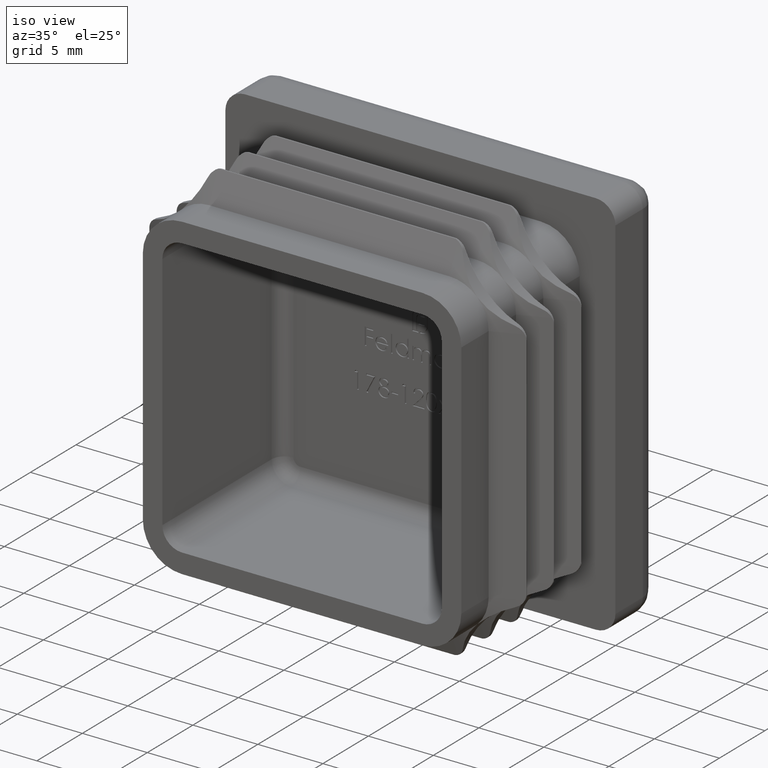
[diagram: clean part render]
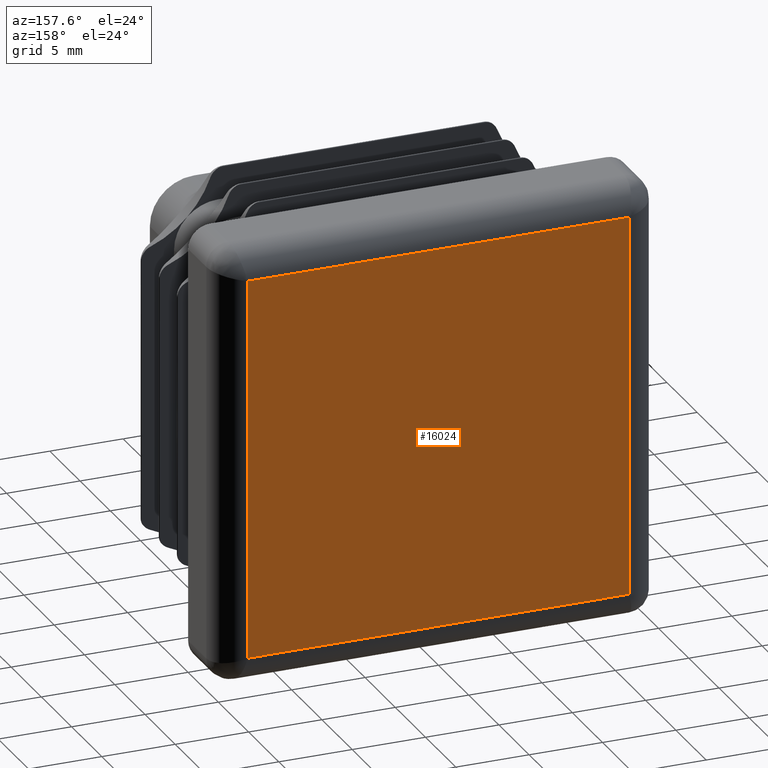
[diagram: tour spotlight — one face highlighted and labeled with its STEP entity id]
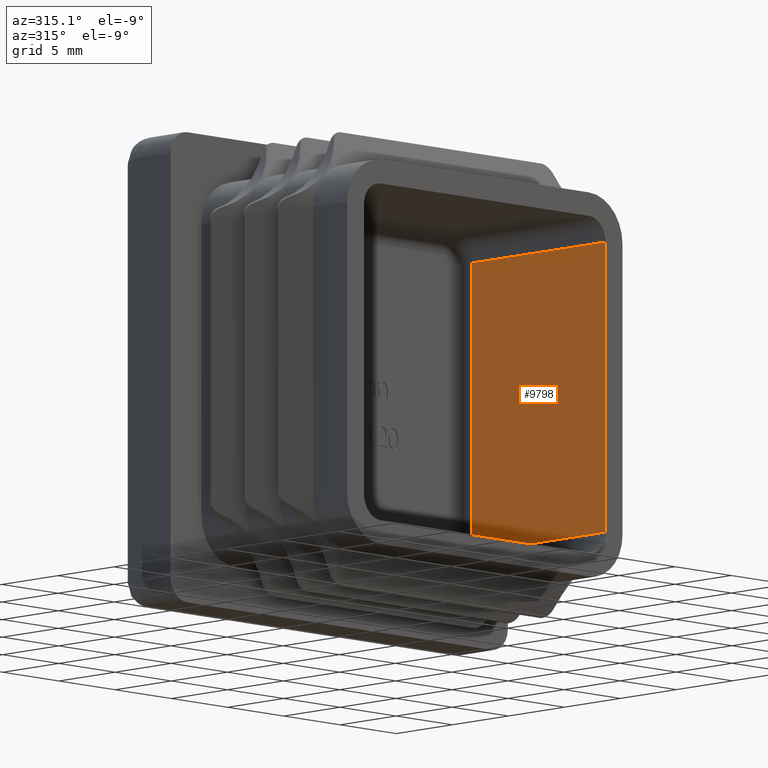
[diagram: tour spotlight — one face highlighted and labeled with its STEP entity id]
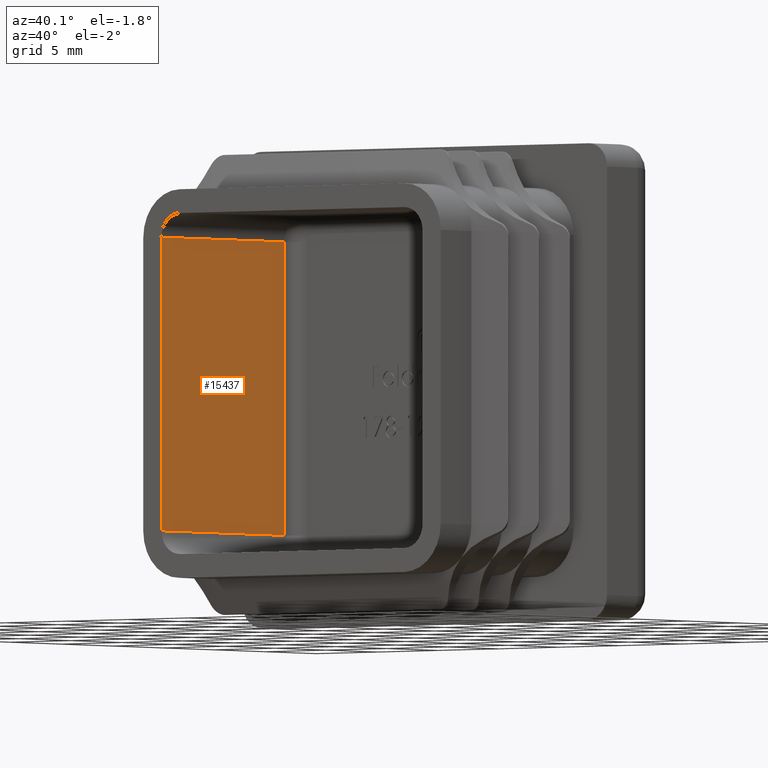
[diagram: tour spotlight — one face highlighted and labeled with its STEP entity id]
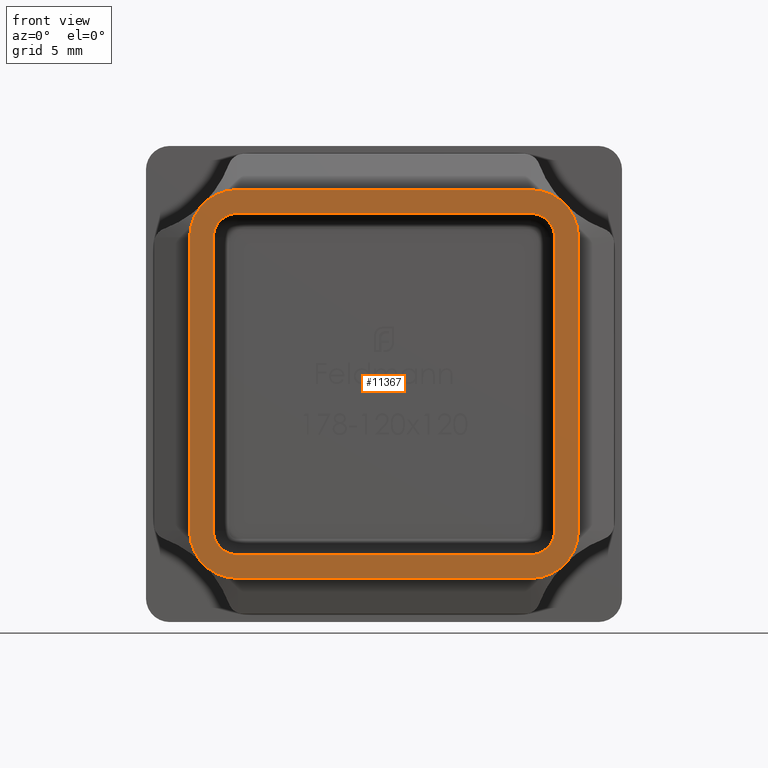
[diagram: tour spotlight — one face highlighted and labeled with its STEP entity id]
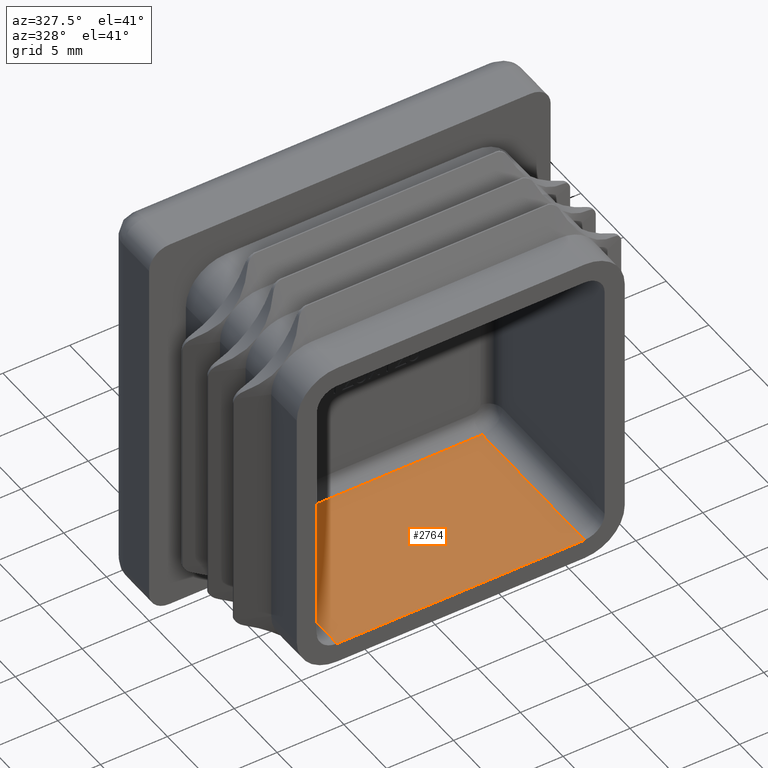
[diagram: tour spotlight — one face highlighted and labeled with its STEP entity id]
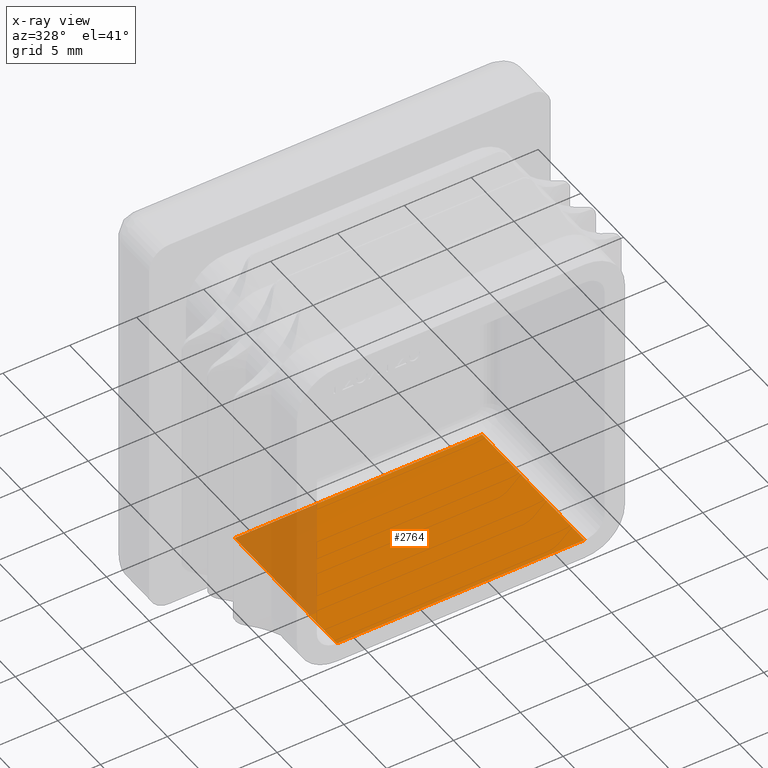
[diagram: x-ray of the same camera — body ghosted, this tour face saturated]
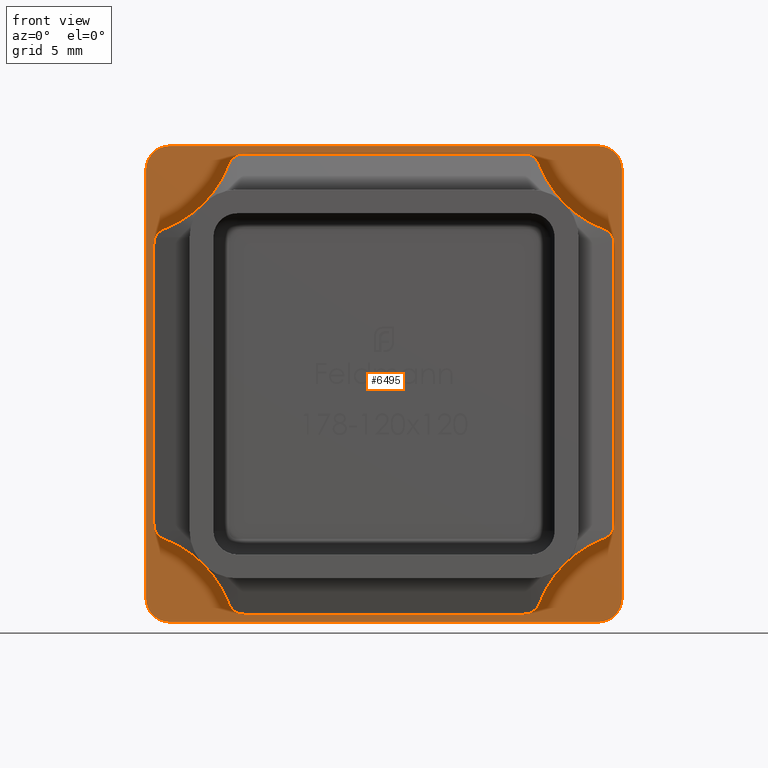
[diagram: tour spotlight — one face highlighted and labeled with its STEP entity id]
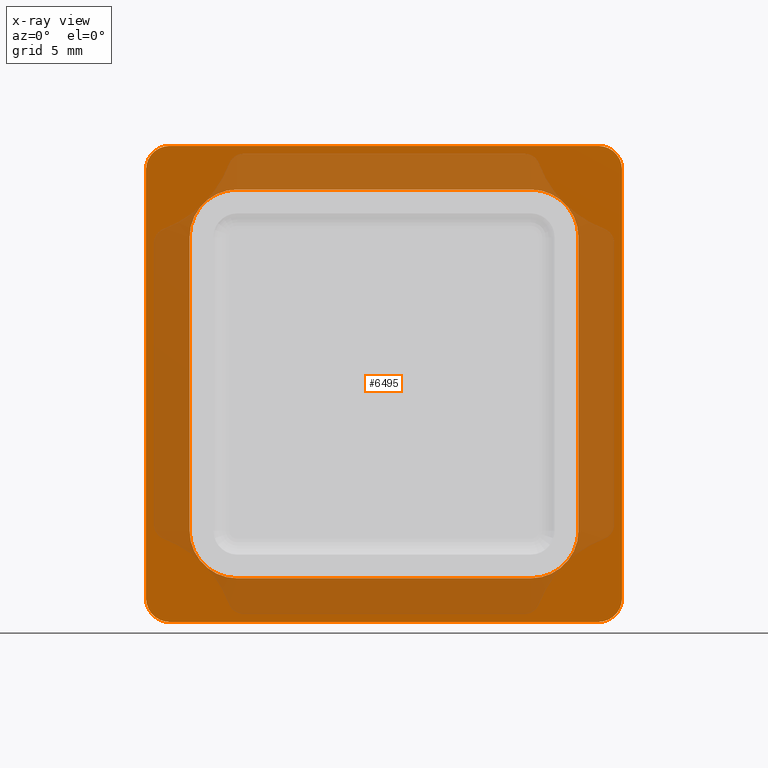
[diagram: x-ray of the same camera — body ghosted, this tour face saturated]
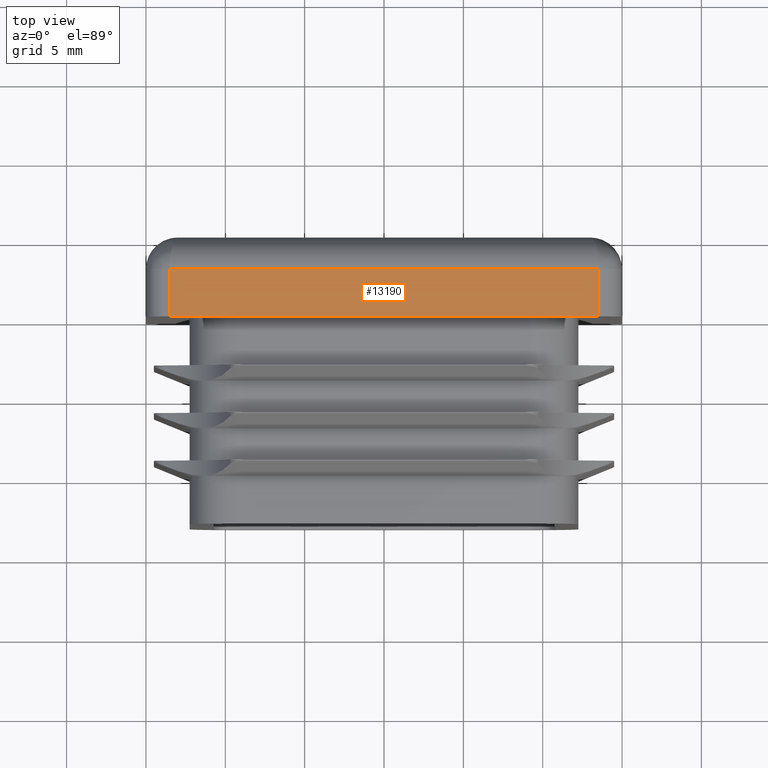
[diagram: tour spotlight — one face highlighted and labeled with its STEP entity id]
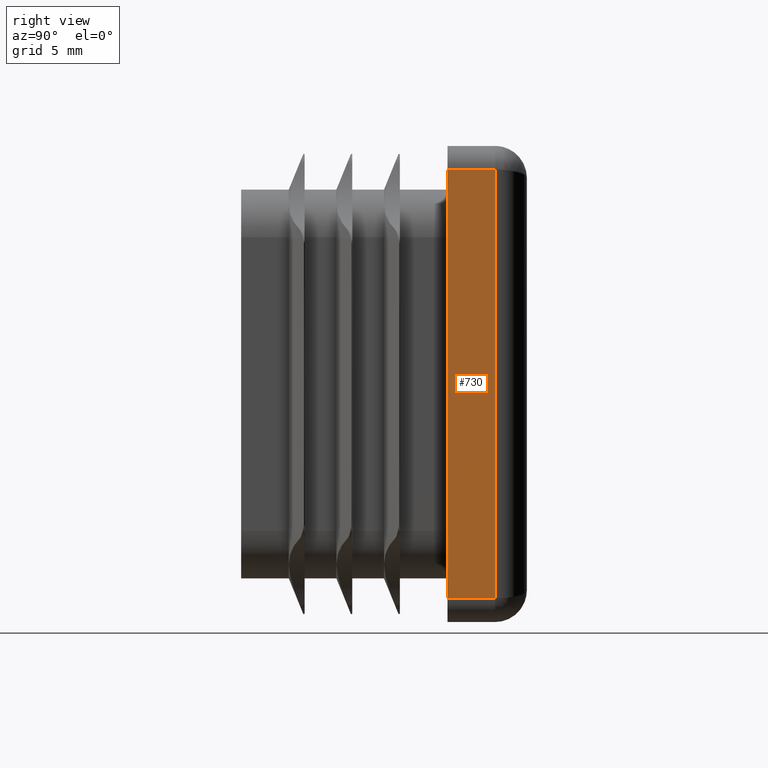
[diagram: tour spotlight — one face highlighted and labeled with its STEP entity id]
A machine part: a face-by-face anatomy tour. The part has 465 B-rep faces; the first image is the clean iso view, then the 8 largest visible faces are spotlighted one at a time (largest first), each with its STEP entity span.

Face 1 — auxiliary view, entity #16024. In plain terms, the highlighted planar face has unit normal (0, 1, 0).
Definition (entity closure, byte-faithful):
#431 = FACE_OUTER_BOUND ( 'NONE', #16841, .T. ) ;
#797 = CARTESIAN_POINT ( 'NONE',  ( -12.99999999999999289, 5.000000000000000000, 13.50000000000001066 ) ) ;
#886 = EDGE_CURVE ( 'NONE', #17351, #2311, #5390, .T. ) ;
#1414 = VECTOR ( 'NONE', #18505, 1000.000000000000000 ) ;
#2311 = VERTEX_POINT ( 'NONE', #8908 ) ;
#2592 = CARTESIAN_POINT ( 'NONE',  ( 13.50000000000000533, 5.000000000000000000, 13.00000000000001243 ) ) ;
#2714 = CARTESIAN_POINT ( 'NONE',  ( 13.00000000000000711, 5.000000000000000000, 13.00000000000001243 ) ) ;
#3085 = ORIENTED_EDGE ( 'NONE', *, *, #15872, .T. ) ;
#3848 = EDGE_CURVE ( 'NONE', #2311, #13670, #19646, .T. ) ;
#4873 = VECTOR ( 'NONE', #7278, 1000.000000000000000 ) ;
#4909 = CARTESIAN_POINT ( 'NONE',  ( 0.000000000000000000, 5.000000000000000000, 0.000000000000000000 ) ) ;
#5108 = DIRECTION ( 'NONE',  ( 0.000000000000000000, 1.000000000000000000, 0.000000000000000000 ) ) ;
#5390 = LINE ( 'NONE', #797, #4873 ) ;
#5810 = DIRECTION ( 'NONE',  ( 1.000000000000000000, -0.000000000000000000, 0.000000000000000000 ) ) ;
#5912 = LINE ( 'NONE', #8893, #1414 ) ;
#6102 = CARTESIAN_POINT ( 'NONE',  ( -13.50000000000000533, 5.000000000000000000, -12.99999999999997868 ) ) ;
#6300 = AXIS2_PLACEMENT_3D ( 'NONE', #4909, #5108, #9788 ) ;
#7278 = DIRECTION ( 'NONE',  ( 4.625929269271486900E-16, -0.000000000000000000, 1.000000000000000000 ) ) ;
#7592 = CARTESIAN_POINT ( 'NONE',  ( 13.00000000000000000, 5.000000000000000000, -12.99999999999999112 ) ) ;
#8893 = CARTESIAN_POINT ( 'NONE',  ( 13.00000000000000000, 5.000000000000000000, -13.49999999999999289 ) ) ;
#8908 = CARTESIAN_POINT ( 'NONE',  ( -12.99999999999999289, 5.000000000000000000, 13.00000000000001243 ) ) ;
#9259 = ORIENTED_EDGE ( 'NONE', *, *, #886, .T. ) ;
#9534 = CARTESIAN_POINT ( 'NONE',  ( -13.00000000000000533, 5.000000000000000000, -12.99999999999997868 ) ) ;
#9788 = DIRECTION ( 'NONE',  ( 0.000000000000000000, -0.000000000000000000, 1.000000000000000000 ) ) ;
#11097 = LINE ( 'NONE', #6102, #11838 ) ;
#11838 = VECTOR ( 'NONE', #18526, 1000.000000000000000 ) ;
#13670 = VERTEX_POINT ( 'NONE', #2714 ) ;
#14704 = ORIENTED_EDGE ( 'NONE', *, *, #3848, .T. ) ;
#14994 = VERTEX_POINT ( 'NONE', #7592 ) ;
#15689 = PLANE ( 'NONE',  #6300 ) ;
#15872 = EDGE_CURVE ( 'NONE', #14994, #17351, #11097, .T. ) ;
#16024 = ADVANCED_FACE ( 'NONE', ( #431 ), #15689, .T. ) ;
#16275 = EDGE_CURVE ( 'NONE', #13670, #14994, #5912, .T. ) ;
#16841 = EDGE_LOOP ( 'NONE', ( #9259, #14704, #18685, #3085 ) ) ;
#17351 = VERTEX_POINT ( 'NONE', #9534 ) ;
#18505 = DIRECTION ( 'NONE',  ( -2.312964634635742464E-16, 0.000000000000000000, -1.000000000000000000 ) ) ;
#18526 = DIRECTION ( 'NONE',  ( -1.000000000000000000, 0.000000000000000000, 4.625929269271484928E-16 ) ) ;
#18685 = ORIENTED_EDGE ( 'NONE', *, *, #16275, .T. ) ;
#19385 = VECTOR ( 'NONE', #5810, 1000.000000000000000 ) ;
#19646 = LINE ( 'NONE', #2592, #19385 ) ;

Face 2 — auxiliary view, entity #9798. In plain terms, the highlighted planar face has unit normal (-1, 0, -0).
Definition (entity closure, byte-faithful):
#301 = DIRECTION ( 'NONE',  ( -9.376883653928694512E-16, 0.000000000000000000, 1.000000000000000000 ) ) ;
#674 = VECTOR ( 'NONE', #11819, 1000.000000000000000 ) ;
#1034 = EDGE_LOOP ( 'NONE', ( #9579, #10562, #4759, #16397 ) ) ;
#1245 = VECTOR ( 'NONE', #3268, 1000.000000000000000 ) ;
#2332 = VERTEX_POINT ( 'NONE', #12089 ) ;
#2544 = LINE ( 'NONE', #6892, #12479 ) ;
#3268 = DIRECTION ( 'NONE',  ( -9.376883653928692540E-16, -0.000000000000000000, 1.000000000000000000 ) ) ;
#3987 = VERTEX_POINT ( 'NONE', #16493 ) ;
#3997 = EDGE_CURVE ( 'NONE', #3987, #20276, #2544, .T. ) ;
#4177 = AXIS2_PLACEMENT_3D ( 'NONE', #19276, #11130, #301 ) ;
#4543 = VERTEX_POINT ( 'NONE', #15196 ) ;
#4759 = ORIENTED_EDGE ( 'NONE', *, *, #15767, .F. ) ;
#4995 = PLANE ( 'NONE',  #4177 ) ;
#6892 = CARTESIAN_POINT ( 'NONE',  ( 10.74999999999997158, -13.00000000000000000, 9.249999999999994671 ) ) ;
#8575 = DIRECTION ( 'NONE',  ( 9.376883653928694512E-16, -0.000000000000000000, -1.000000000000000000 ) ) ;
#9548 = FACE_OUTER_BOUND ( 'NONE', #1034, .T. ) ;
#9579 = ORIENTED_EDGE ( 'NONE', *, *, #3997, .T. ) ;
#9798 = ADVANCED_FACE ( 'NONE', ( #9548 ), #4995, .T. ) ;
#10562 = ORIENTED_EDGE ( 'NONE', *, *, #17507, .T. ) ;
#11130 = DIRECTION ( 'NONE',  ( -1.000000000000000000, 0.000000000000000000, -9.376883653928694512E-16 ) ) ;
#11819 = DIRECTION ( 'NONE',  ( -0.000000000000000000, 1.000000000000000000, -0.000000000000000000 ) ) ;
#12089 = CARTESIAN_POINT ( 'NONE',  ( 10.74999999999998579, -0.9999999999999956701, -9.249999999999994671 ) ) ;
#12331 = EDGE_CURVE ( 'NONE', #4543, #3987, #15879, .T. ) ;
#12479 = VECTOR ( 'NONE', #18079, 1000.000000000000000 ) ;
#12784 = LINE ( 'NONE', #13325, #18003 ) ;
#13325 = CARTESIAN_POINT ( 'NONE',  ( 10.74999999999996803, -0.9999999999999991118, 9.249999999999994671 ) ) ;
#15196 = CARTESIAN_POINT ( 'NONE',  ( 10.74999999999998579, -13.00000000000000000, -9.249999999999994671 ) ) ;
#15767 = EDGE_CURVE ( 'NONE', #4543, #2332, #19749, .T. ) ;
#15879 = LINE ( 'NONE', #18914, #1245 ) ;
#16397 = ORIENTED_EDGE ( 'NONE', *, *, #12331, .T. ) ;
#16493 = CARTESIAN_POINT ( 'NONE',  ( 10.74999999999997158, -13.00000000000000000, 9.249999999999994671 ) ) ;
#17252 = CARTESIAN_POINT ( 'NONE',  ( 10.74999999999998579, -13.00000000000000000, -9.249999999999994671 ) ) ;
#17507 = EDGE_CURVE ( 'NONE', #20276, #2332, #12784, .T. ) ;
#18003 = VECTOR ( 'NONE', #8575, 1000.000000000000000 ) ;
#18079 = DIRECTION ( 'NONE',  ( -0.000000000000000000, 1.000000000000000000, -0.000000000000000000 ) ) ;
#18694 = CARTESIAN_POINT ( 'NONE',  ( 10.74999999999997158, -1.000000000000002665, 9.249999999999994671 ) ) ;
#18914 = CARTESIAN_POINT ( 'NONE',  ( 10.74999999999996803, -13.00000000000000000, 9.249999999999994671 ) ) ;
#19276 = CARTESIAN_POINT ( 'NONE',  ( 10.74999999999996803, -13.00000000000000000, 9.249999999999994671 ) ) ;
#19749 = LINE ( 'NONE', #17252, #674 ) ;
#20276 = VERTEX_POINT ( 'NONE', #18694 ) ;

Face 3 — auxiliary view, entity #15437. In plain terms, the highlighted planar face has unit normal (1, 0, 0).
Definition (entity closure, byte-faithful):
#331 = VERTEX_POINT ( 'NONE', #12809 ) ;
#861 = LINE ( 'NONE', #16553, #1611 ) ;
#1160 = EDGE_CURVE ( 'NONE', #331, #12531, #2635, .T. ) ;
#1611 = VECTOR ( 'NONE', #3674, 1000.000000000000000 ) ;
#2121 = VECTOR ( 'NONE', #19126, 1000.000000000000000 ) ;
#2265 = CARTESIAN_POINT ( 'NONE',  ( -10.75000000000000178, -13.00000000000000000, -9.249999999999994671 ) ) ;
#2635 = LINE ( 'NONE', #12774, #2121 ) ;
#3674 = DIRECTION ( 'NONE',  ( -0.000000000000000000, 1.000000000000000000, -0.000000000000000000 ) ) ;
#3814 = CARTESIAN_POINT ( 'NONE',  ( -10.75000000000000888, -0.9999999999999991118, 9.250000000000001776 ) ) ;
#3931 = LINE ( 'NONE', #3814, #11846 ) ;
#4021 = DIRECTION ( 'NONE',  ( 1.000000000000000000, 0.000000000000000000, 3.750753461571476424E-16 ) ) ;
#4462 = DIRECTION ( 'NONE',  ( -0.000000000000000000, 1.000000000000000000, -0.000000000000000000 ) ) ;
#5254 = ORIENTED_EDGE ( 'NONE', *, *, #6896, .T. ) ;
#5731 = EDGE_CURVE ( 'NONE', #331, #7059, #861, .T. ) ;
#5759 = EDGE_LOOP ( 'NONE', ( #8455, #5254, #11531, #10499 ) ) ;
#6896 = EDGE_CURVE ( 'NONE', #19065, #7059, #3931, .T. ) ;
#7017 = DIRECTION ( 'NONE',  ( -3.750753461571476424E-16, -0.000000000000000000, 1.000000000000000000 ) ) ;
#7059 = VERTEX_POINT ( 'NONE', #19080 ) ;
#7143 = LINE ( 'NONE', #20407, #9833 ) ;
#7219 = DIRECTION ( 'NONE',  ( 3.750753461571476424E-16, 0.000000000000000000, -1.000000000000000000 ) ) ;
#8455 = ORIENTED_EDGE ( 'NONE', *, *, #16894, .T. ) ;
#8729 = PLANE ( 'NONE',  #17187 ) ;
#9833 = VECTOR ( 'NONE', #4462, 1000.000000000000000 ) ;
#10499 = ORIENTED_EDGE ( 'NONE', *, *, #1160, .T. ) ;
#11531 = ORIENTED_EDGE ( 'NONE', *, *, #5731, .F. ) ;
#11846 = VECTOR ( 'NONE', #7017, 1000.000000000000000 ) ;
#12531 = VERTEX_POINT ( 'NONE', #2265 ) ;
#12774 = CARTESIAN_POINT ( 'NONE',  ( -10.75000000000000888, -13.00000000000000000, 9.250000000000001776 ) ) ;
#12809 = CARTESIAN_POINT ( 'NONE',  ( -10.75000000000000888, -13.00000000000000000, 9.250000000000001776 ) ) ;
#13420 = CARTESIAN_POINT ( 'NONE',  ( -10.75000000000000888, -13.00000000000000000, 9.250000000000001776 ) ) ;
#15437 = ADVANCED_FACE ( 'NONE', ( #17081 ), #8729, .T. ) ;
#16261 = CARTESIAN_POINT ( 'NONE',  ( -10.75000000000000178, -1.000000000000002665, -9.249999999999994671 ) ) ;
#16553 = CARTESIAN_POINT ( 'NONE',  ( -10.75000000000000888, -13.00000000000000000, 9.250000000000001776 ) ) ;
#16894 = EDGE_CURVE ( 'NONE', #12531, #19065, #7143, .T. ) ;
#17081 = FACE_OUTER_BOUND ( 'NONE', #5759, .T. ) ;
#17187 = AXIS2_PLACEMENT_3D ( 'NONE', #13420, #4021, #7219 ) ;
#19065 = VERTEX_POINT ( 'NONE', #16261 ) ;
#19080 = CARTESIAN_POINT ( 'NONE',  ( -10.75000000000000888, -0.9999999999999956701, 9.250000000000001776 ) ) ;
#19126 = DIRECTION ( 'NONE',  ( 3.750753461571475931E-16, -0.000000000000000000, -1.000000000000000000 ) ) ;
#20407 = CARTESIAN_POINT ( 'NONE',  ( -10.75000000000000178, -13.00000000000000000, -9.249999999999994671 ) ) ;

Face 4 — front view, entity #11367. In plain terms, the highlighted planar face has unit normal (0, -1, 0).
Definition (entity closure, byte-faithful):
#3 = CARTESIAN_POINT ( 'NONE',  ( -9.250000000000001776, -13.00000000000000000, -10.74999999999999645 ) ) ;
#111 = VERTEX_POINT ( 'NONE', #15456 ) ;
#145 = CARTESIAN_POINT ( 'NONE',  ( 9.249999999999973355, -13.00000000000000000, 9.249999999999994671 ) ) ;
#282 = VERTEX_POINT ( 'NONE', #9575 ) ;
#331 = VERTEX_POINT ( 'NONE', #12809 ) ;
#355 = ORIENTED_EDGE ( 'NONE', *, *, #17347, .T. ) ;
#418 = AXIS2_PLACEMENT_3D ( 'NONE', #15208, #19993, #10509 ) ;
#570 = CIRCLE ( 'NONE', #14147, 3.000000000000006217 ) ;
#596 = EDGE_CURVE ( 'NONE', #12531, #282, #5127, .T. ) ;
#609 = CIRCLE ( 'NONE', #418, 3.000000000000006217 ) ;
#636 = VECTOR ( 'NONE', #11246, 1000.000000000000000 ) ;
#813 = EDGE_CURVE ( 'NONE', #111, #4543, #17503, .T. ) ;
#885 = EDGE_CURVE ( 'NONE', #8934, #14242, #609, .T. ) ;
#1057 = ORIENTED_EDGE ( 'NONE', *, *, #12114, .F. ) ;
#1094 = AXIS2_PLACEMENT_3D ( 'NONE', #8720, #18266, #10318 ) ;
#1156 = CIRCLE ( 'NONE', #10774, 1.499999999999997780 ) ;
#1160 = EDGE_CURVE ( 'NONE', #331, #12531, #2635, .T. ) ;
#1245 = VECTOR ( 'NONE', #3268, 1000.000000000000000 ) ;
#1538 = DIRECTION ( 'NONE',  ( 0.000000000000000000, 0.000000000000000000, 1.000000000000000000 ) ) ;
#1582 = VERTEX_POINT ( 'NONE', #9472 ) ;
#1677 = VECTOR ( 'NONE', #2180, 1000.000000000000000 ) ;
#1726 = VECTOR ( 'NONE', #16596, 1000.000000000000000 ) ;
#1938 = VECTOR ( 'NONE', #11113, 1000.000000000000000 ) ;
#2121 = VECTOR ( 'NONE', #19126, 1000.000000000000000 ) ;
#2180 = DIRECTION ( 'NONE',  ( -0.000000000000000000, -0.000000000000000000, 1.000000000000000000 ) ) ;
#2220 = DIRECTION ( 'NONE',  ( 0.000000000000000000, -1.000000000000000000, 0.000000000000000000 ) ) ;
#2239 = FACE_OUTER_BOUND ( 'NONE', #16455, .T. ) ;
#2244 = ORIENTED_EDGE ( 'NONE', *, *, #596, .F. ) ;
#2265 = CARTESIAN_POINT ( 'NONE',  ( -10.75000000000000178, -13.00000000000000000, -9.249999999999994671 ) ) ;
#2381 = VERTEX_POINT ( 'NONE', #8776 ) ;
#2547 = ORIENTED_EDGE ( 'NONE', *, *, #813, .F. ) ;
#2635 = LINE ( 'NONE', #12774, #2121 ) ;
#2647 = VERTEX_POINT ( 'NONE', #14347 ) ;
#2652 = CARTESIAN_POINT ( 'NONE',  ( -9.250000000000008882, -13.00000000000000000, 10.74999999999999645 ) ) ;
#2789 = ORIENTED_EDGE ( 'NONE', *, *, #13445, .F. ) ;
#2862 = CARTESIAN_POINT ( 'NONE',  ( -9.250000000000012434, -13.00000000000000000, 9.249999999999998224 ) ) ;
#2981 = EDGE_CURVE ( 'NONE', #12337, #18350, #570, .T. ) ;
#3066 = VERTEX_POINT ( 'NONE', #8361 ) ;
#3268 = DIRECTION ( 'NONE',  ( -9.376883653928692540E-16, -0.000000000000000000, 1.000000000000000000 ) ) ;
#3390 = VECTOR ( 'NONE', #4769, 1000.000000000000000 ) ;
#3614 = EDGE_LOOP ( 'NONE', ( #3617, #12411, #1057, #17965, #4492, #2547, #2789, #2244 ) ) ;
#3617 = ORIENTED_EDGE ( 'NONE', *, *, #1160, .F. ) ;
#3663 = EDGE_CURVE ( 'NONE', #1582, #19659, #10258, .T. ) ;
#3895 = LINE ( 'NONE', #12634, #3390 ) ;
#3987 = VERTEX_POINT ( 'NONE', #16493 ) ;
#4492 = ORIENTED_EDGE ( 'NONE', *, *, #12331, .F. ) ;
#4543 = VERTEX_POINT ( 'NONE', #15196 ) ;
#4590 = EDGE_CURVE ( 'NONE', #3066, #331, #8510, .T. ) ;
#4699 = AXIS2_PLACEMENT_3D ( 'NONE', #19904, #10432, #7755 ) ;
#4769 = DIRECTION ( 'NONE',  ( -1.000000000000000000, -0.000000000000000000, -0.000000000000000000 ) ) ;
#4821 = DIRECTION ( 'NONE',  ( 1.000000000000000000, 0.000000000000000000, 0.000000000000000000 ) ) ;
#5088 = DIRECTION ( 'NONE',  ( 0.000000000000000000, 0.000000000000000000, 1.000000000000000000 ) ) ;
#5127 = CIRCLE ( 'NONE', #12518, 1.500000000000001332 ) ;
#5367 = ORIENTED_EDGE ( 'NONE', *, *, #15374, .T. ) ;
#5893 = LINE ( 'NONE', #15832, #636 ) ;
#5960 = LINE ( 'NONE', #3, #1938 ) ;
#6196 = DIRECTION ( 'NONE',  ( 0.000000000000000000, 0.000000000000000000, 1.000000000000000000 ) ) ;
#6615 = DIRECTION ( 'NONE',  ( 0.000000000000000000, -1.000000000000000000, 0.000000000000000000 ) ) ;
#7088 = CARTESIAN_POINT ( 'NONE',  ( 9.249999999999969802, -13.00000000000000000, 12.24999999999999645 ) ) ;
#7396 = CARTESIAN_POINT ( 'NONE',  ( -12.25000000000001066, -13.00000000000000000, 9.250000000000001776 ) ) ;
#7482 = LINE ( 'NONE', #18842, #11394 ) ;
#7673 = DIRECTION ( 'NONE',  ( 0.000000000000000000, -1.000000000000000000, 0.000000000000000000 ) ) ;
#7690 = EDGE_CURVE ( 'NONE', #18350, #1582, #3895, .T. ) ;
#7755 = DIRECTION ( 'NONE',  ( 0.000000000000000000, 0.000000000000000000, -1.000000000000000000 ) ) ;
#7861 = CARTESIAN_POINT ( 'NONE',  ( -9.250000000000001776, -13.00000000000000000, -12.24999999999999645 ) ) ;
#7970 = EDGE_CURVE ( 'NONE', #3987, #20458, #1156, .T. ) ;
#8361 = CARTESIAN_POINT ( 'NONE',  ( -9.250000000000008882, -13.00000000000000000, 10.74999999999999645 ) ) ;
#8510 = CIRCLE ( 'NONE', #18549, 1.499999999999997780 ) ;
#8523 = CARTESIAN_POINT ( 'NONE',  ( 12.24999999999998224, -13.00000000000000000, 9.249999999999991118 ) ) ;
#8720 = CARTESIAN_POINT ( 'NONE',  ( 9.249999999999987566, -13.00000000000000000, -9.249999999999994671 ) ) ;
#8776 = CARTESIAN_POINT ( 'NONE',  ( 9.249999999999987566, -13.00000000000000000, -12.24999999999999645 ) ) ;
#8829 = EDGE_CURVE ( 'NONE', #2381, #2647, #13518, .T. ) ;
#8934 = VERTEX_POINT ( 'NONE', #9341 ) ;
#9218 = FACE_BOUND ( 'NONE', #3614, .T. ) ;
#9260 = CARTESIAN_POINT ( 'NONE',  ( -9.250000000000012434, -13.00000000000000000, 9.249999999999998224 ) ) ;
#9341 = CARTESIAN_POINT ( 'NONE',  ( -12.25000000000000711, -13.00000000000000000, -9.249999999999994671 ) ) ;
#9472 = CARTESIAN_POINT ( 'NONE',  ( -9.250000000000012434, -13.00000000000000000, 12.24999999999999645 ) ) ;
#9575 = CARTESIAN_POINT ( 'NONE',  ( -9.250000000000001776, -13.00000000000000000, -10.74999999999999645 ) ) ;
#10153 = CARTESIAN_POINT ( 'NONE',  ( 9.249999999999987566, -13.00000000000000000, -9.249999999999994671 ) ) ;
#10258 = CIRCLE ( 'NONE', #11629, 2.999999999999999112 ) ;
#10318 = DIRECTION ( 'NONE',  ( 0.000000000000000000, 0.000000000000000000, -1.000000000000000000 ) ) ;
#10408 = AXIS2_PLACEMENT_3D ( 'NONE', #10153, #2220, #13326 ) ;
#10432 = DIRECTION ( 'NONE',  ( 0.000000000000000000, -1.000000000000000000, 0.000000000000000000 ) ) ;
#10509 = DIRECTION ( 'NONE',  ( 0.000000000000000000, 0.000000000000000000, 1.000000000000000000 ) ) ;
#10774 = AXIS2_PLACEMENT_3D ( 'NONE', #19165, #6615, #5088 ) ;
#10982 = ORIENTED_EDGE ( 'NONE', *, *, #8829, .T. ) ;
#11113 = DIRECTION ( 'NONE',  ( 1.000000000000000000, 0.000000000000000000, 0.000000000000000000 ) ) ;
#11246 = DIRECTION ( 'NONE',  ( 0.000000000000000000, -0.000000000000000000, -1.000000000000000000 ) ) ;
#11367 = ADVANCED_FACE ( 'NONE', ( #2239, #9218 ), #19609, .T. ) ;
#11394 = VECTOR ( 'NONE', #4821, 1000.000000000000000 ) ;
#11629 = AXIS2_PLACEMENT_3D ( 'NONE', #2862, #7673, #12145 ) ;
#12114 = EDGE_CURVE ( 'NONE', #20458, #3066, #17138, .T. ) ;
#12145 = DIRECTION ( 'NONE',  ( 0.000000000000000000, 0.000000000000000000, 1.000000000000000000 ) ) ;
#12331 = EDGE_CURVE ( 'NONE', #4543, #3987, #15879, .T. ) ;
#12337 = VERTEX_POINT ( 'NONE', #14283 ) ;
#12344 = EDGE_CURVE ( 'NONE', #14242, #2381, #7482, .T. ) ;
#12358 = LINE ( 'NONE', #8523, #1677 ) ;
#12411 = ORIENTED_EDGE ( 'NONE', *, *, #4590, .F. ) ;
#12518 = AXIS2_PLACEMENT_3D ( 'NONE', #17128, #15520, #6196 ) ;
#12531 = VERTEX_POINT ( 'NONE', #2265 ) ;
#12553 = ORIENTED_EDGE ( 'NONE', *, *, #12344, .T. ) ;
#12634 = CARTESIAN_POINT ( 'NONE',  ( -9.250000000000012434, -13.00000000000000000, 12.24999999999999645 ) ) ;
#12774 = CARTESIAN_POINT ( 'NONE',  ( -10.75000000000000888, -13.00000000000000000, 9.250000000000001776 ) ) ;
#12809 = CARTESIAN_POINT ( 'NONE',  ( -10.75000000000000888, -13.00000000000000000, 9.250000000000001776 ) ) ;
#12957 = DIRECTION ( 'NONE',  ( 0.000000000000000000, -1.000000000000000000, 0.000000000000000000 ) ) ;
#13005 = ORIENTED_EDGE ( 'NONE', *, *, #3663, .T. ) ;
#13326 = DIRECTION ( 'NONE',  ( 0.000000000000000000, -0.000000000000000000, -1.000000000000000000 ) ) ;
#13445 = EDGE_CURVE ( 'NONE', #282, #111, #5960, .T. ) ;
#13518 = CIRCLE ( 'NONE', #4699, 2.999999999999999112 ) ;
#14147 = AXIS2_PLACEMENT_3D ( 'NONE', #145, #12957, #14561 ) ;
#14242 = VERTEX_POINT ( 'NONE', #7861 ) ;
#14283 = CARTESIAN_POINT ( 'NONE',  ( 12.24999999999998046, -13.00000000000000000, 9.249999999999992895 ) ) ;
#14347 = CARTESIAN_POINT ( 'NONE',  ( 12.24999999999998224, -13.00000000000000000, -9.249999999999998224 ) ) ;
#14561 = DIRECTION ( 'NONE',  ( 0.000000000000000000, 0.000000000000000000, 1.000000000000000000 ) ) ;
#15125 = CARTESIAN_POINT ( 'NONE',  ( 9.249999999999966249, -13.00000000000000000, 10.74999999999999645 ) ) ;
#15196 = CARTESIAN_POINT ( 'NONE',  ( 10.74999999999998579, -13.00000000000000000, -9.249999999999994671 ) ) ;
#15208 = CARTESIAN_POINT ( 'NONE',  ( -9.250000000000001776, -13.00000000000000000, -9.249999999999994671 ) ) ;
#15374 = EDGE_CURVE ( 'NONE', #2647, #12337, #12358, .T. ) ;
#15456 = CARTESIAN_POINT ( 'NONE',  ( 9.249999999999987566, -13.00000000000000000, -10.74999999999999467 ) ) ;
#15507 = ORIENTED_EDGE ( 'NONE', *, *, #7690, .T. ) ;
#15520 = DIRECTION ( 'NONE',  ( 0.000000000000000000, -1.000000000000000000, 0.000000000000000000 ) ) ;
#15832 = CARTESIAN_POINT ( 'NONE',  ( -12.25000000000001066, -13.00000000000000000, 9.250000000000001776 ) ) ;
#15879 = LINE ( 'NONE', #18914, #1245 ) ;
#16455 = EDGE_LOOP ( 'NONE', ( #10982, #5367, #17722, #15507, #13005, #355, #20211, #12553 ) ) ;
#16493 = CARTESIAN_POINT ( 'NONE',  ( 10.74999999999997158, -13.00000000000000000, 9.249999999999994671 ) ) ;
#16596 = DIRECTION ( 'NONE',  ( -1.000000000000000000, -0.000000000000000000, -0.000000000000000000 ) ) ;
#17128 = CARTESIAN_POINT ( 'NONE',  ( -9.250000000000001776, -13.00000000000000000, -9.249999999999994671 ) ) ;
#17138 = LINE ( 'NONE', #2652, #1726 ) ;
#17347 = EDGE_CURVE ( 'NONE', #19659, #8934, #5893, .T. ) ;
#17503 = CIRCLE ( 'NONE', #1094, 1.499999999999999556 ) ;
#17722 = ORIENTED_EDGE ( 'NONE', *, *, #2981, .T. ) ;
#17965 = ORIENTED_EDGE ( 'NONE', *, *, #7970, .F. ) ;
#18266 = DIRECTION ( 'NONE',  ( 0.000000000000000000, -1.000000000000000000, 0.000000000000000000 ) ) ;
#18350 = VERTEX_POINT ( 'NONE', #7088 ) ;
#18549 = AXIS2_PLACEMENT_3D ( 'NONE', #9260, #20448, #1538 ) ;
#18842 = CARTESIAN_POINT ( 'NONE',  ( -9.250000000000001776, -13.00000000000000000, -12.24999999999999645 ) ) ;
#18914 = CARTESIAN_POINT ( 'NONE',  ( 10.74999999999996803, -13.00000000000000000, 9.249999999999994671 ) ) ;
#19126 = DIRECTION ( 'NONE',  ( 3.750753461571475931E-16, -0.000000000000000000, -1.000000000000000000 ) ) ;
#19165 = CARTESIAN_POINT ( 'NONE',  ( 9.249999999999973355, -13.00000000000000000, 9.249999999999994671 ) ) ;
#19609 = PLANE ( 'NONE',  #10408 ) ;
#19659 = VERTEX_POINT ( 'NONE', #7396 ) ;
#19904 = CARTESIAN_POINT ( 'NONE',  ( 9.249999999999987566, -13.00000000000000000, -9.249999999999994671 ) ) ;
#19993 = DIRECTION ( 'NONE',  ( 0.000000000000000000, -1.000000000000000000, 0.000000000000000000 ) ) ;
#20211 = ORIENTED_EDGE ( 'NONE', *, *, #885, .T. ) ;
#20448 = DIRECTION ( 'NONE',  ( 0.000000000000000000, -1.000000000000000000, 0.000000000000000000 ) ) ;
#20458 = VERTEX_POINT ( 'NONE', #15125 ) ;

Face 5 — auxiliary view, entity #2764. An x-ray twin of the same camera follows (body ghosted, this face saturated) — the face is partly hidden behind the body. In plain terms, the highlighted planar face has unit normal (-0, 0, 1).
Definition (entity closure, byte-faithful):
#3 = CARTESIAN_POINT ( 'NONE',  ( -9.250000000000001776, -13.00000000000000000, -10.74999999999999645 ) ) ;
#111 = VERTEX_POINT ( 'NONE', #15456 ) ;
#282 = VERTEX_POINT ( 'NONE', #9575 ) ;
#942 = DIRECTION ( 'NONE',  ( -1.000000000000000000, -0.000000000000000000, -0.000000000000000000 ) ) ;
#1938 = VECTOR ( 'NONE', #11113, 1000.000000000000000 ) ;
#2216 = EDGE_CURVE ( 'NONE', #282, #2490, #6124, .T. ) ;
#2424 = VECTOR ( 'NONE', #942, 1000.000000000000000 ) ;
#2490 = VERTEX_POINT ( 'NONE', #2938 ) ;
#2764 = ADVANCED_FACE ( 'NONE', ( #4852 ), #13229, .T. ) ;
#2938 = CARTESIAN_POINT ( 'NONE',  ( -9.250000000000001776, -0.9999999999999956701, -10.74999999999999645 ) ) ;
#4035 = EDGE_LOOP ( 'NONE', ( #4587, #5606, #13439, #13353 ) ) ;
#4587 = ORIENTED_EDGE ( 'NONE', *, *, #6706, .T. ) ;
#4852 = FACE_OUTER_BOUND ( 'NONE', #4035, .T. ) ;
#5094 = CARTESIAN_POINT ( 'NONE',  ( 9.249999999999987566, -1.000000000000002665, -10.74999999999999467 ) ) ;
#5373 = DIRECTION ( 'NONE',  ( 1.000000000000000000, 0.000000000000000000, 0.000000000000000000 ) ) ;
#5605 = VECTOR ( 'NONE', #18807, 1000.000000000000000 ) ;
#5606 = ORIENTED_EDGE ( 'NONE', *, *, #15413, .T. ) ;
#5960 = LINE ( 'NONE', #3, #1938 ) ;
#6124 = LINE ( 'NONE', #20389, #5605 ) ;
#6706 = EDGE_CURVE ( 'NONE', #111, #9481, #19497, .T. ) ;
#7161 = CARTESIAN_POINT ( 'NONE',  ( -9.250000000000001776, -0.9999999999999991118, -10.74999999999999645 ) ) ;
#8469 = DIRECTION ( 'NONE',  ( -0.000000000000000000, 0.000000000000000000, 1.000000000000000000 ) ) ;
#9481 = VERTEX_POINT ( 'NONE', #5094 ) ;
#9575 = CARTESIAN_POINT ( 'NONE',  ( -9.250000000000001776, -13.00000000000000000, -10.74999999999999645 ) ) ;
#10374 = LINE ( 'NONE', #7161, #2424 ) ;
#10430 = CARTESIAN_POINT ( 'NONE',  ( 9.249999999999987566, -13.00000000000000000, -10.74999999999999467 ) ) ;
#11113 = DIRECTION ( 'NONE',  ( 1.000000000000000000, 0.000000000000000000, 0.000000000000000000 ) ) ;
#13229 = PLANE ( 'NONE',  #16283 ) ;
#13353 = ORIENTED_EDGE ( 'NONE', *, *, #13445, .T. ) ;
#13439 = ORIENTED_EDGE ( 'NONE', *, *, #2216, .F. ) ;
#13445 = EDGE_CURVE ( 'NONE', #282, #111, #5960, .T. ) ;
#14564 = VECTOR ( 'NONE', #19899, 1000.000000000000000 ) ;
#15037 = CARTESIAN_POINT ( 'NONE',  ( -9.250000000000001776, -13.00000000000000000, -10.74999999999999645 ) ) ;
#15413 = EDGE_CURVE ( 'NONE', #9481, #2490, #10374, .T. ) ;
#15456 = CARTESIAN_POINT ( 'NONE',  ( 9.249999999999987566, -13.00000000000000000, -10.74999999999999467 ) ) ;
#16283 = AXIS2_PLACEMENT_3D ( 'NONE', #15037, #8469, #5373 ) ;
#18807 = DIRECTION ( 'NONE',  ( -0.000000000000000000, 1.000000000000000000, -0.000000000000000000 ) ) ;
#19497 = LINE ( 'NONE', #10430, #14564 ) ;
#19899 = DIRECTION ( 'NONE',  ( -0.000000000000000000, 1.000000000000000000, -0.000000000000000000 ) ) ;
#20389 = CARTESIAN_POINT ( 'NONE',  ( -9.250000000000001776, -13.00000000000000000, -10.74999999999999645 ) ) ;

Face 6 — front view, entity #6495. An x-ray twin of the same camera follows (body ghosted, this face saturated) — the face is partly hidden behind the body. In plain terms, the highlighted planar face has unit normal (0, 1, 0).
Definition (entity closure, byte-faithful):
#248 = EDGE_CURVE ( 'NONE', #9200, #17245, #9809, .T. ) ;
#252 = EDGE_CURVE ( 'NONE', #1194, #9200, #2884, .T. ) ;
#432 = DIRECTION ( 'NONE',  ( -0.000000000000000000, -1.000000000000000000, -0.000000000000000000 ) ) ;
#619 = CARTESIAN_POINT ( 'NONE',  ( 9.249999999999969802, 0.000000000000000000, 12.24999999999999645 ) ) ;
#644 = CARTESIAN_POINT ( 'NONE',  ( -13.49999999999999289, 0.000000000000000000, 13.50000000000001421 ) ) ;
#823 = ORIENTED_EDGE ( 'NONE', *, *, #252, .F. ) ;
#862 = CARTESIAN_POINT ( 'NONE',  ( -9.250000000000001776, 0.000000000000000000, -12.24999999999999645 ) ) ;
#1194 = VERTEX_POINT ( 'NONE', #5516 ) ;
#1304 = DIRECTION ( 'NONE',  ( 0.000000000000000000, -1.000000000000000000, 0.000000000000000000 ) ) ;
#1365 = DIRECTION ( 'NONE',  ( 0.000000000000000000, -1.000000000000000000, 0.000000000000000000 ) ) ;
#1445 = ORIENTED_EDGE ( 'NONE', *, *, #17080, .T. ) ;
#1602 = VERTEX_POINT ( 'NONE', #862 ) ;
#1869 = DIRECTION ( 'NONE',  ( 0.000000000000000000, 0.000000000000000000, -1.000000000000000000 ) ) ;
#2006 = DIRECTION ( 'NONE',  ( 0.000000000000000000, 0.000000000000000000, 1.000000000000000000 ) ) ;
#2007 = CIRCLE ( 'NONE', #4507, 2.999999999999999112 ) ;
#2130 = EDGE_LOOP ( 'NONE', ( #16860, #19820, #19294, #15398, #18353, #9065, #20359, #823 ) ) ;
#2134 = LINE ( 'NONE', #14717, #17310 ) ;
#2367 = VECTOR ( 'NONE', #15805, 1000.000000000000000 ) ;
#2498 = ORIENTED_EDGE ( 'NONE', *, *, #18664, .T. ) ;
#2568 = DIRECTION ( 'NONE',  ( 1.000000000000000000, 0.000000000000000000, 0.000000000000000000 ) ) ;
#2766 = DIRECTION ( 'NONE',  ( 0.000000000000000000, 0.000000000000000000, 1.000000000000000000 ) ) ;
#2884 = CIRCLE ( 'NONE', #17444, 2.999999999999999112 ) ;
#2901 = LINE ( 'NONE', #5929, #8125 ) ;
#2928 = FACE_BOUND ( 'NONE', #2130, .T. ) ;
#2963 = LINE ( 'NONE', #11825, #17350 ) ;
#3042 = CARTESIAN_POINT ( 'NONE',  ( 9.249999999999973355, 0.000000000000000000, 9.249999999999994671 ) ) ;
#3175 = CARTESIAN_POINT ( 'NONE',  ( -9.250000000000001776, -0.000000000000000000, -9.249999999999994671 ) ) ;
#3196 = CARTESIAN_POINT ( 'NONE',  ( -12.25000000000001066, 0.000000000000000000, 9.250000000000001776 ) ) ;
#3277 = CARTESIAN_POINT ( 'NONE',  ( -13.50000000000000711, 0.000000000000000000, -14.99999999999997868 ) ) ;
#3382 = EDGE_CURVE ( 'NONE', #12230, #14681, #7823, .T. ) ;
#3854 = ORIENTED_EDGE ( 'NONE', *, *, #13544, .T. ) ;
#3902 = CIRCLE ( 'NONE', #20217, 1.499999999999999556 ) ;
#3994 = ORIENTED_EDGE ( 'NONE', *, *, #8965, .F. ) ;
#4507 = AXIS2_PLACEMENT_3D ( 'NONE', #14488, #14555, #1869 ) ;
#4586 = CARTESIAN_POINT ( 'NONE',  ( 0.000000000000000000, 0.000000000000000000, 0.000000000000000000 ) ) ;
#4620 = CIRCLE ( 'NONE', #10286, 1.499999999999999556 ) ;
#5035 = EDGE_CURVE ( 'NONE', #16517, #11490, #2007, .T. ) ;
#5148 = CIRCLE ( 'NONE', #7508, 3.000000000000006217 ) ;
#5250 = EDGE_CURVE ( 'NONE', #17606, #12903, #15657, .T. ) ;
#5389 = DIRECTION ( 'NONE',  ( -0.000000000000000000, -1.000000000000000000, -0.000000000000000000 ) ) ;
#5516 = CARTESIAN_POINT ( 'NONE',  ( -9.250000000000012434, 0.000000000000000000, 12.24999999999999645 ) ) ;
#5680 = CARTESIAN_POINT ( 'NONE',  ( -12.25000000000000711, 0.000000000000000000, -9.249999999999994671 ) ) ;
#5929 = CARTESIAN_POINT ( 'NONE',  ( 12.24999999999998224, 0.000000000000000000, 9.249999999999991118 ) ) ;
#6231 = CARTESIAN_POINT ( 'NONE',  ( -14.99999999999999289, 0.000000000000000000, 15.00000000000001421 ) ) ;
#6241 = ORIENTED_EDGE ( 'NONE', *, *, #3382, .F. ) ;
#6495 = ADVANCED_FACE ( 'NONE', ( #2928, #9864 ), #12383, .F. ) ;
#7053 = ORIENTED_EDGE ( 'NONE', *, *, #14295, .T. ) ;
#7104 = CARTESIAN_POINT ( 'NONE',  ( -13.50000000000000711, 0.000000000000000000, -13.49999999999997868 ) ) ;
#7508 = AXIS2_PLACEMENT_3D ( 'NONE', #3042, #1304, #2766 ) ;
#7543 = CARTESIAN_POINT ( 'NONE',  ( 15.00000000000000000, 0.000000000000000000, -13.49999999999999289 ) ) ;
#7823 = LINE ( 'NONE', #16012, #9523 ) ;
#7992 = CARTESIAN_POINT ( 'NONE',  ( -9.250000000000012434, 0.000000000000000000, 9.249999999999998224 ) ) ;
#7999 = DIRECTION ( 'NONE',  ( -1.000000000000000000, -0.000000000000000000, 4.625929269271484928E-16 ) ) ;
#8125 = VECTOR ( 'NONE', #16793, 1000.000000000000000 ) ;
#8222 = VERTEX_POINT ( 'NONE', #19038 ) ;
#8358 = CIRCLE ( 'NONE', #8531, 3.000000000000006217 ) ;
#8391 = DIRECTION ( 'NONE',  ( -0.000000000000000000, -1.000000000000000000, -0.000000000000000000 ) ) ;
#8484 = CARTESIAN_POINT ( 'NONE',  ( 13.49999999999999822, 0.000000000000000000, -13.49999999999999289 ) ) ;
#8516 = EDGE_CURVE ( 'NONE', #17245, #1602, #8358, .T. ) ;
#8531 = AXIS2_PLACEMENT_3D ( 'NONE', #3175, #1365, #9547 ) ;
#8965 = EDGE_CURVE ( 'NONE', #16993, #16901, #18464, .T. ) ;
#9065 = ORIENTED_EDGE ( 'NONE', *, *, #8516, .F. ) ;
#9200 = VERTEX_POINT ( 'NONE', #19189 ) ;
#9523 = VECTOR ( 'NONE', #7999, 1000.000000000000000 ) ;
#9547 = DIRECTION ( 'NONE',  ( 0.000000000000000000, 0.000000000000000000, 1.000000000000000000 ) ) ;
#9809 = LINE ( 'NONE', #3196, #2367 ) ;
#9864 = FACE_OUTER_BOUND ( 'NONE', #12254, .T. ) ;
#10286 = AXIS2_PLACEMENT_3D ( 'NONE', #7104, #14877, #16707 ) ;
#10468 = DIRECTION ( 'NONE',  ( 4.625929269271486900E-16, 0.000000000000000000, 1.000000000000000000 ) ) ;
#10488 = CARTESIAN_POINT ( 'NONE',  ( -15.00000000000000711, 0.000000000000000000, -13.49999999999997868 ) ) ;
#10537 = ORIENTED_EDGE ( 'NONE', *, *, #5250, .F. ) ;
#10707 = VERTEX_POINT ( 'NONE', #17482 ) ;
#10875 = CARTESIAN_POINT ( 'NONE',  ( 13.50000000000000533, 0.000000000000000000, 15.00000000000001421 ) ) ;
#11284 = VECTOR ( 'NONE', #15481, 1000.000000000000000 ) ;
#11309 = DIRECTION ( 'NONE',  ( -2.312964634635742464E-16, -0.000000000000000000, -1.000000000000000000 ) ) ;
#11490 = VERTEX_POINT ( 'NONE', #17352 ) ;
#11614 = DIRECTION ( 'NONE',  ( 2.312964634635743450E-15, 0.000000000000000000, 1.000000000000000000 ) ) ;
#11662 = AXIS2_PLACEMENT_3D ( 'NONE', #4586, #15574, #20260 ) ;
#11726 = VERTEX_POINT ( 'NONE', #619 ) ;
#11825 = CARTESIAN_POINT ( 'NONE',  ( -9.250000000000012434, 0.000000000000000000, 12.24999999999999645 ) ) ;
#12230 = VERTEX_POINT ( 'NONE', #18648 ) ;
#12254 = EDGE_LOOP ( 'NONE', ( #6241, #3854, #19959, #1445, #3994, #7053, #10537, #2498 ) ) ;
#12383 = PLANE ( 'NONE',  #11662 ) ;
#12398 = CARTESIAN_POINT ( 'NONE',  ( -13.49999999999999289, 0.000000000000000000, 15.00000000000001421 ) ) ;
#12903 = VERTEX_POINT ( 'NONE', #19350 ) ;
#13015 = EDGE_CURVE ( 'NONE', #11726, #1194, #2963, .T. ) ;
#13139 = AXIS2_PLACEMENT_3D ( 'NONE', #644, #432, #2006 ) ;
#13544 = EDGE_CURVE ( 'NONE', #12230, #15944, #18098, .T. ) ;
#13589 = CARTESIAN_POINT ( 'NONE',  ( -9.250000000000001776, -0.000000000000000000, -12.24999999999999645 ) ) ;
#13860 = CIRCLE ( 'NONE', #13139, 1.499999999999999556 ) ;
#14295 = EDGE_CURVE ( 'NONE', #16993, #12903, #13860, .T. ) ;
#14470 = VECTOR ( 'NONE', #2568, 1000.000000000000000 ) ;
#14488 = CARTESIAN_POINT ( 'NONE',  ( 9.249999999999987566, 0.000000000000000000, -9.249999999999994671 ) ) ;
#14555 = DIRECTION ( 'NONE',  ( 0.000000000000000000, -1.000000000000000000, 0.000000000000000000 ) ) ;
#14681 = VERTEX_POINT ( 'NONE', #3277 ) ;
#14717 = CARTESIAN_POINT ( 'NONE',  ( 15.00000000000000000, 0.000000000000000000, -14.99999999999999289 ) ) ;
#14858 = DIRECTION ( 'NONE',  ( -1.000000000000000000, -0.000000000000000000, -0.000000000000000000 ) ) ;
#14877 = DIRECTION ( 'NONE',  ( -0.000000000000000000, -1.000000000000000000, -0.000000000000000000 ) ) ;
#14901 = DIRECTION ( 'NONE',  ( 0.000000000000000000, 0.000000000000000000, 1.000000000000000000 ) ) ;
#15159 = CARTESIAN_POINT ( 'NONE',  ( -15.00000000000000711, 0.000000000000000000, -14.99999999999997868 ) ) ;
#15388 = AXIS2_PLACEMENT_3D ( 'NONE', #8484, #5389, #14901 ) ;
#15398 = ORIENTED_EDGE ( 'NONE', *, *, #5035, .F. ) ;
#15481 = DIRECTION ( 'NONE',  ( 1.000000000000000000, 0.000000000000000000, 0.000000000000000000 ) ) ;
#15574 = DIRECTION ( 'NONE',  ( 0.000000000000000000, 1.000000000000000000, 0.000000000000000000 ) ) ;
#15657 = LINE ( 'NONE', #15159, #17874 ) ;
#15805 = DIRECTION ( 'NONE',  ( 0.000000000000000000, -0.000000000000000000, -1.000000000000000000 ) ) ;
#15944 = VERTEX_POINT ( 'NONE', #7543 ) ;
#16012 = CARTESIAN_POINT ( 'NONE',  ( -15.00000000000000711, 0.000000000000000000, -14.99999999999997868 ) ) ;
#16081 = CARTESIAN_POINT ( 'NONE',  ( 9.249999999999987566, 0.000000000000000000, -12.24999999999999645 ) ) ;
#16192 = CARTESIAN_POINT ( 'NONE',  ( 13.50000000000000711, 0.000000000000000000, 13.50000000000001243 ) ) ;
#16459 = EDGE_CURVE ( 'NONE', #10707, #15944, #2134, .T. ) ;
#16517 = VERTEX_POINT ( 'NONE', #16081 ) ;
#16707 = DIRECTION ( 'NONE',  ( 0.000000000000000000, 0.000000000000000000, 1.000000000000000000 ) ) ;
#16793 = DIRECTION ( 'NONE',  ( -0.000000000000000000, -0.000000000000000000, 1.000000000000000000 ) ) ;
#16860 = ORIENTED_EDGE ( 'NONE', *, *, #13015, .F. ) ;
#16863 = EDGE_CURVE ( 'NONE', #11490, #8222, #2901, .T. ) ;
#16901 = VERTEX_POINT ( 'NONE', #10875 ) ;
#16983 = EDGE_CURVE ( 'NONE', #8222, #11726, #5148, .T. ) ;
#16993 = VERTEX_POINT ( 'NONE', #12398 ) ;
#17080 = EDGE_CURVE ( 'NONE', #10707, #16901, #3902, .T. ) ;
#17245 = VERTEX_POINT ( 'NONE', #5680 ) ;
#17310 = VECTOR ( 'NONE', #11309, 1000.000000000000000 ) ;
#17350 = VECTOR ( 'NONE', #14858, 1000.000000000000000 ) ;
#17352 = CARTESIAN_POINT ( 'NONE',  ( 12.24999999999998224, 0.000000000000000000, -9.249999999999998224 ) ) ;
#17444 = AXIS2_PLACEMENT_3D ( 'NONE', #7992, #19037, #18977 ) ;
#17482 = CARTESIAN_POINT ( 'NONE',  ( 15.00000000000000711, 0.000000000000000000, 13.50000000000001243 ) ) ;
#17606 = VERTEX_POINT ( 'NONE', #10488 ) ;
#17874 = VECTOR ( 'NONE', #10468, 1000.000000000000000 ) ;
#18098 = CIRCLE ( 'NONE', #15388, 1.499999999999999556 ) ;
#18353 = ORIENTED_EDGE ( 'NONE', *, *, #19608, .F. ) ;
#18464 = LINE ( 'NONE', #6231, #11284 ) ;
#18648 = CARTESIAN_POINT ( 'NONE',  ( 13.49999999999999822, 0.000000000000000000, -14.99999999999999289 ) ) ;
#18664 = EDGE_CURVE ( 'NONE', #17606, #14681, #4620, .T. ) ;
#18689 = LINE ( 'NONE', #13589, #14470 ) ;
#18977 = DIRECTION ( 'NONE',  ( 0.000000000000000000, 0.000000000000000000, 1.000000000000000000 ) ) ;
#19037 = DIRECTION ( 'NONE',  ( 0.000000000000000000, -1.000000000000000000, 0.000000000000000000 ) ) ;
#19038 = CARTESIAN_POINT ( 'NONE',  ( 12.24999999999998046, 0.000000000000000000, 9.249999999999992895 ) ) ;
#19189 = CARTESIAN_POINT ( 'NONE',  ( -12.25000000000001066, 0.000000000000000000, 9.250000000000001776 ) ) ;
#19294 = ORIENTED_EDGE ( 'NONE', *, *, #16863, .F. ) ;
#19350 = CARTESIAN_POINT ( 'NONE',  ( -14.99999999999999289, 0.000000000000000000, 13.50000000000001243 ) ) ;
#19608 = EDGE_CURVE ( 'NONE', #1602, #16517, #18689, .T. ) ;
#19820 = ORIENTED_EDGE ( 'NONE', *, *, #16983, .F. ) ;
#19959 = ORIENTED_EDGE ( 'NONE', *, *, #16459, .F. ) ;
#20217 = AXIS2_PLACEMENT_3D ( 'NONE', #16192, #8391, #11614 ) ;
#20260 = DIRECTION ( 'NONE',  ( 0.000000000000000000, -0.000000000000000000, 1.000000000000000000 ) ) ;
#20359 = ORIENTED_EDGE ( 'NONE', *, *, #248, .F. ) ;

Face 7 — top view, entity #13190. In plain terms, the highlighted planar face has unit normal (0, 0, -1).
Definition (entity closure, byte-faithful):
#849 = EDGE_CURVE ( 'NONE', #4804, #14185, #17006, .T. ) ;
#1954 = ORIENTED_EDGE ( 'NONE', *, *, #8965, .T. ) ;
#2523 = DIRECTION ( 'NONE',  ( 0.000000000000000000, 0.000000000000000000, -1.000000000000000000 ) ) ;
#2654 = AXIS2_PLACEMENT_3D ( 'NONE', #12041, #2523, #6375 ) ;
#4700 = CARTESIAN_POINT ( 'NONE',  ( 13.50000000000000533, 5.000000000000000000, 15.00000000000001421 ) ) ;
#4804 = VERTEX_POINT ( 'NONE', #11239 ) ;
#6056 = ORIENTED_EDGE ( 'NONE', *, *, #19804, .T. ) ;
#6231 = CARTESIAN_POINT ( 'NONE',  ( -14.99999999999999289, 0.000000000000000000, 15.00000000000001421 ) ) ;
#6375 = DIRECTION ( 'NONE',  ( -1.000000000000000000, 0.000000000000000000, -0.000000000000000000 ) ) ;
#7213 = CARTESIAN_POINT ( 'NONE',  ( -13.49999999999999289, 3.000000000000000000, 15.00000000000001421 ) ) ;
#7637 = PLANE ( 'NONE',  #2654 ) ;
#7687 = DIRECTION ( 'NONE',  ( -0.000000000000000000, 1.000000000000000000, -0.000000000000000000 ) ) ;
#8447 = ORIENTED_EDGE ( 'NONE', *, *, #14505, .T. ) ;
#8965 = EDGE_CURVE ( 'NONE', #16993, #16901, #18464, .T. ) ;
#9439 = CARTESIAN_POINT ( 'NONE',  ( -13.49999999999999289, 5.000000000000000000, 15.00000000000001421 ) ) ;
#9574 = DIRECTION ( 'NONE',  ( 0.000000000000000000, -1.000000000000000000, 0.000000000000000000 ) ) ;
#10380 = DIRECTION ( 'NONE',  ( -1.000000000000000000, -0.000000000000000000, -0.000000000000000000 ) ) ;
#10736 = CARTESIAN_POINT ( 'NONE',  ( -13.49999999999999289, 3.000000000000000000, 15.00000000000001421 ) ) ;
#10875 = CARTESIAN_POINT ( 'NONE',  ( 13.50000000000000533, 0.000000000000000000, 15.00000000000001421 ) ) ;
#11093 = ORIENTED_EDGE ( 'NONE', *, *, #849, .T. ) ;
#11239 = CARTESIAN_POINT ( 'NONE',  ( 13.50000000000000533, 3.000000000000000000, 15.00000000000001421 ) ) ;
#11284 = VECTOR ( 'NONE', #15481, 1000.000000000000000 ) ;
#12041 = CARTESIAN_POINT ( 'NONE',  ( -14.99999999999999289, 5.000000000000000000, 15.00000000000001421 ) ) ;
#12240 = LINE ( 'NONE', #9439, #17463 ) ;
#12398 = CARTESIAN_POINT ( 'NONE',  ( -13.49999999999999289, 0.000000000000000000, 15.00000000000001421 ) ) ;
#12570 = EDGE_LOOP ( 'NONE', ( #8447, #11093, #6056, #1954 ) ) ;
#13190 = ADVANCED_FACE ( 'NONE', ( #19801 ), #7637, .F. ) ;
#14185 = VERTEX_POINT ( 'NONE', #10736 ) ;
#14349 = VECTOR ( 'NONE', #7687, 1000.000000000000000 ) ;
#14505 = EDGE_CURVE ( 'NONE', #16901, #4804, #20527, .T. ) ;
#15272 = VECTOR ( 'NONE', #10380, 1000.000000000000000 ) ;
#15481 = DIRECTION ( 'NONE',  ( 1.000000000000000000, 0.000000000000000000, 0.000000000000000000 ) ) ;
#16901 = VERTEX_POINT ( 'NONE', #10875 ) ;
#16993 = VERTEX_POINT ( 'NONE', #12398 ) ;
#17006 = LINE ( 'NONE', #7213, #15272 ) ;
#17463 = VECTOR ( 'NONE', #9574, 1000.000000000000000 ) ;
#18464 = LINE ( 'NONE', #6231, #11284 ) ;
#19801 = FACE_OUTER_BOUND ( 'NONE', #12570, .T. ) ;
#19804 = EDGE_CURVE ( 'NONE', #14185, #16993, #12240, .T. ) ;
#20527 = LINE ( 'NONE', #4700, #14349 ) ;

Face 8 — right view, entity #730. In plain terms, the highlighted planar face has unit normal (-1, 0, 0).
Definition (entity closure, byte-faithful):
#730 = ADVANCED_FACE ( 'NONE', ( #13765 ), #5144, .F. ) ;
#1539 = ORIENTED_EDGE ( 'NONE', *, *, #3807, .T. ) ;
#2134 = LINE ( 'NONE', #14717, #17310 ) ;
#3807 = EDGE_CURVE ( 'NONE', #15944, #15516, #8777, .T. ) ;
#4713 = LINE ( 'NONE', #13642, #19035 ) ;
#4977 = DIRECTION ( 'NONE',  ( 2.312964634635742464E-16, -0.000000000000000000, 1.000000000000000000 ) ) ;
#5134 = VERTEX_POINT ( 'NONE', #8621 ) ;
#5144 = PLANE ( 'NONE',  #19930 ) ;
#5410 = DIRECTION ( 'NONE',  ( -1.000000000000000000, 0.000000000000000000, 2.312964634635742464E-16 ) ) ;
#5415 = ORIENTED_EDGE ( 'NONE', *, *, #15075, .T. ) ;
#5854 = EDGE_LOOP ( 'NONE', ( #1539, #11667, #5415, #19443 ) ) ;
#7066 = VECTOR ( 'NONE', #7751, 1000.000000000000000 ) ;
#7543 = CARTESIAN_POINT ( 'NONE',  ( 15.00000000000000000, 0.000000000000000000, -13.49999999999999289 ) ) ;
#7751 = DIRECTION ( 'NONE',  ( -0.000000000000000000, 1.000000000000000000, -0.000000000000000000 ) ) ;
#8621 = CARTESIAN_POINT ( 'NONE',  ( 15.00000000000000711, 3.000000000000000000, 13.50000000000001243 ) ) ;
#8777 = LINE ( 'NONE', #15621, #7066 ) ;
#10707 = VERTEX_POINT ( 'NONE', #17482 ) ;
#11309 = DIRECTION ( 'NONE',  ( -2.312964634635742464E-16, -0.000000000000000000, -1.000000000000000000 ) ) ;
#11667 = ORIENTED_EDGE ( 'NONE', *, *, #19433, .T. ) ;
#11751 = VECTOR ( 'NONE', #4977, 1000.000000000000000 ) ;
#13642 = CARTESIAN_POINT ( 'NONE',  ( 15.00000000000000711, 5.000000000000000000, 13.50000000000001243 ) ) ;
#13765 = FACE_OUTER_BOUND ( 'NONE', #5854, .T. ) ;
#14700 = CARTESIAN_POINT ( 'NONE',  ( 15.00000000000000711, 3.000000000000000000, 13.50000000000001243 ) ) ;
#14717 = CARTESIAN_POINT ( 'NONE',  ( 15.00000000000000000, 0.000000000000000000, -14.99999999999999289 ) ) ;
#14733 = CARTESIAN_POINT ( 'NONE',  ( 15.00000000000000000, 5.000000000000000000, -14.99999999999999289 ) ) ;
#15075 = EDGE_CURVE ( 'NONE', #5134, #10707, #4713, .T. ) ;
#15516 = VERTEX_POINT ( 'NONE', #18329 ) ;
#15621 = CARTESIAN_POINT ( 'NONE',  ( 15.00000000000000000, 5.000000000000000000, -13.49999999999999289 ) ) ;
#15944 = VERTEX_POINT ( 'NONE', #7543 ) ;
#16459 = EDGE_CURVE ( 'NONE', #10707, #15944, #2134, .T. ) ;
#17310 = VECTOR ( 'NONE', #11309, 1000.000000000000000 ) ;
#17482 = CARTESIAN_POINT ( 'NONE',  ( 15.00000000000000711, 0.000000000000000000, 13.50000000000001243 ) ) ;
#18329 = CARTESIAN_POINT ( 'NONE',  ( 15.00000000000000000, 3.000000000000000000, -13.49999999999999289 ) ) ;
#19035 = VECTOR ( 'NONE', #20540, 1000.000000000000000 ) ;
#19352 = DIRECTION ( 'NONE',  ( 2.312964634635742464E-16, 0.000000000000000000, 1.000000000000000000 ) ) ;
#19433 = EDGE_CURVE ( 'NONE', #15516, #5134, #20399, .T. ) ;
#19443 = ORIENTED_EDGE ( 'NONE', *, *, #16459, .T. ) ;
#19930 = AXIS2_PLACEMENT_3D ( 'NONE', #14733, #5410, #19352 ) ;
#20399 = LINE ( 'NONE', #14700, #11751 ) ;
#20540 = DIRECTION ( 'NONE',  ( 0.000000000000000000, -1.000000000000000000, 0.000000000000000000 ) ) ;